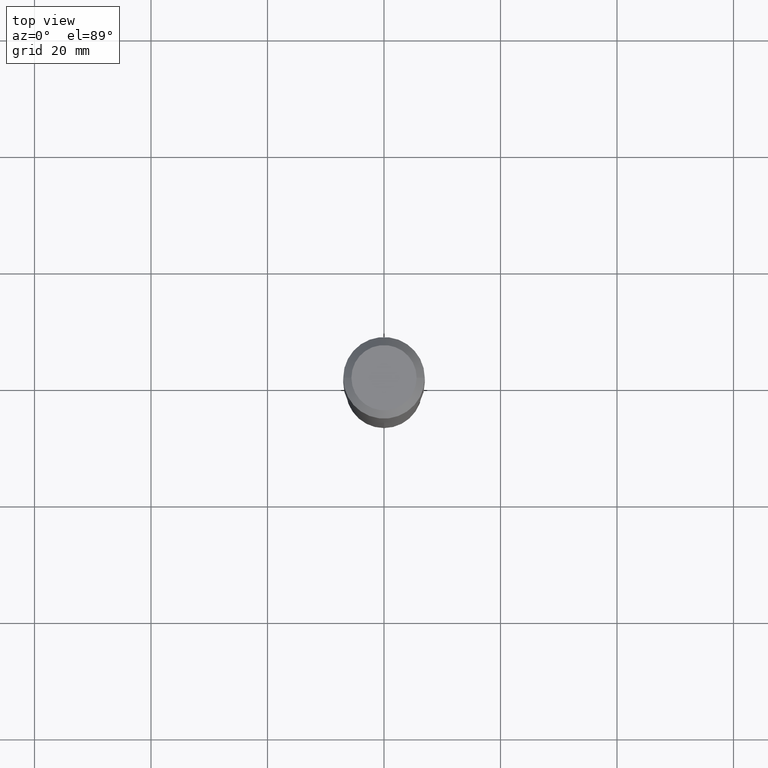
[diagram: clean part render]
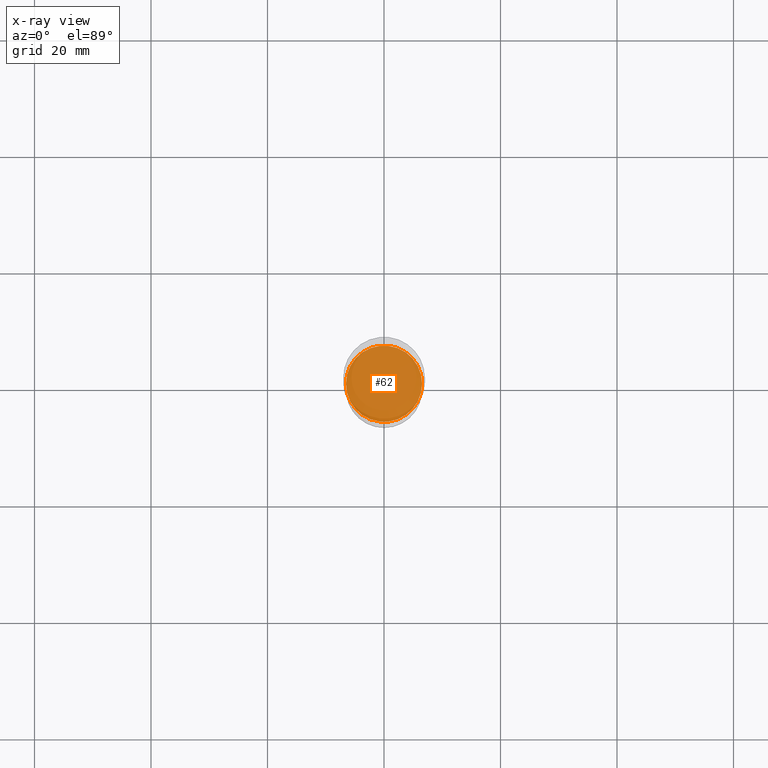
[diagram: x-ray — body ghosted, one internal face saturated and labeled with its STEP entity id]
A machine part, top view, then the same camera in x-ray: the body is ghosted and one INTERNAL B-rep face — a face not visible from any outside direction — is saturated and labeled: STEP entity #62.
In plain terms, the highlighted planar face has unit normal (-0, 0, 1).
Its self-contained STEP definition (entity closure, byte-faithful):
#5 = AXIS2_PLACEMENT_3D ( 'NONE', #474, #402, #318 ) ;
#62 = ADVANCED_FACE ( 'NONE', ( #78 ), #303, .F. ) ;
#78 = FACE_OUTER_BOUND ( 'NONE', #142, .T. ) ;
#91 = CARTESIAN_POINT ( 'NONE',  ( -0.2572999999999999732, -6.428572568882493907E-15, -2.365599999999999259 ) ) ;
#102 = DIRECTION ( 'NONE',  ( 1.000000000000000000, -6.982962677686266711E-15, 0.000000000000000000 ) ) ;
#107 = DIRECTION ( 'NONE',  ( 1.000000000000000000, -6.982962677686265922E-15, 4.876176775795935793E-29 ) ) ;
#142 = EDGE_LOOP ( 'NONE', ( #383, #339 ) ) ;
#235 = CARTESIAN_POINT ( 'NONE',  ( 0.2572999999999999732, -1.005616455213601885E-14, -2.365599999999999259 ) ) ;
#268 = EDGE_CURVE ( 'NONE', #388, #310, #439, .T. ) ;
#303 = PLANE ( 'NONE',  #428 ) ;
#310 = VERTEX_POINT ( 'NONE', #235 ) ;
#318 = DIRECTION ( 'NONE',  ( 1.000000000000000000, -6.982962677686266711E-15, 0.000000000000000000 ) ) ;
#331 = AXIS2_PLACEMENT_3D ( 'NONE', #376, #453, #102 ) ;
#339 = ORIENTED_EDGE ( 'NONE', *, *, #268, .F. ) ;
#345 = DIRECTION ( 'NONE',  ( -2.438088387897960049E-29, 3.491481338843145188E-15, 1.000000000000000000 ) ) ;
#365 = CIRCLE ( 'NONE', #5, 0.2572999999999999732 ) ;
#376 = CARTESIAN_POINT ( 'NONE',  ( 5.785001007911557216E-29, -8.259448255167342695E-15, -2.365599999999999259 ) ) ;
#383 = ORIENTED_EDGE ( 'NONE', *, *, #449, .F. ) ;
#388 = VERTEX_POINT ( 'NONE', #91 ) ;
#402 = DIRECTION ( 'NONE',  ( -2.445468806185136597E-29, 3.491481338843145583E-15, 1.000000000000000000 ) ) ;
#427 = CARTESIAN_POINT ( 'NONE',  ( 7.538872531009313305E-29, -5.747804409923589386E-15, -2.365599999999999703 ) ) ;
#428 = AXIS2_PLACEMENT_3D ( 'NONE', #427, #345, #107 ) ;
#439 = CIRCLE ( 'NONE', #331, 0.2572999999999999732 ) ;
#449 = EDGE_CURVE ( 'NONE', #310, #388, #365, .T. ) ;
#453 = DIRECTION ( 'NONE',  ( -2.445468806185136597E-29, 3.491481338843145583E-15, 1.000000000000000000 ) ) ;
#474 = CARTESIAN_POINT ( 'NONE',  ( 5.785001007911557216E-29, -8.259448255167342695E-15, -2.365599999999999259 ) ) ;